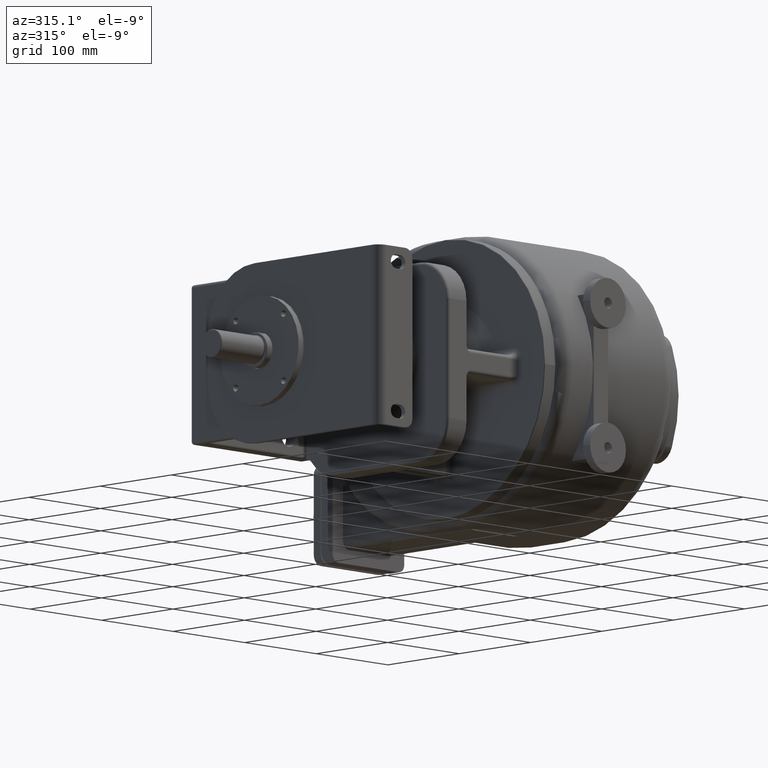
[diagram: clean part render]
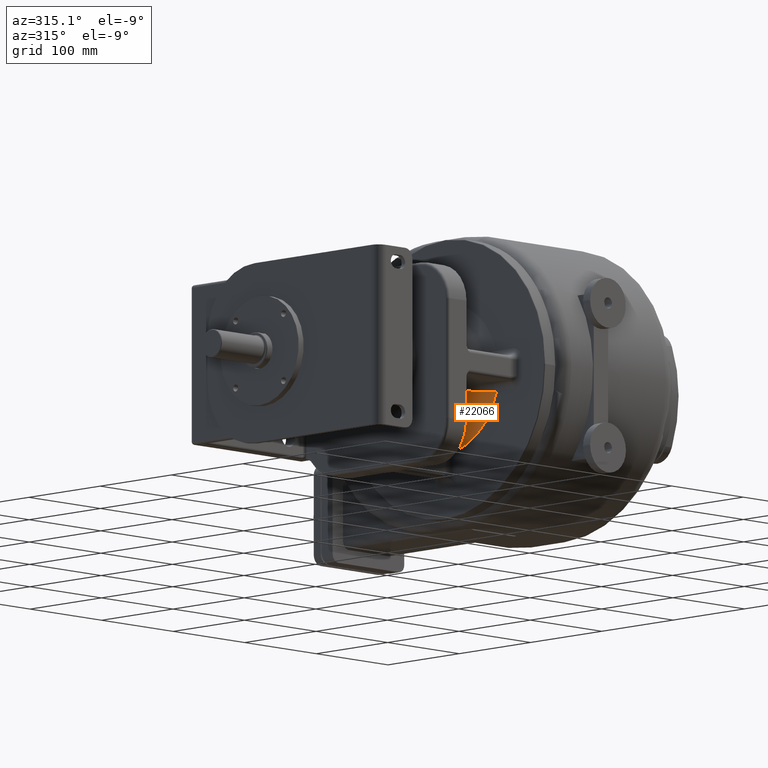
[diagram: same view with one face highlighted and labeled with its STEP entity id]
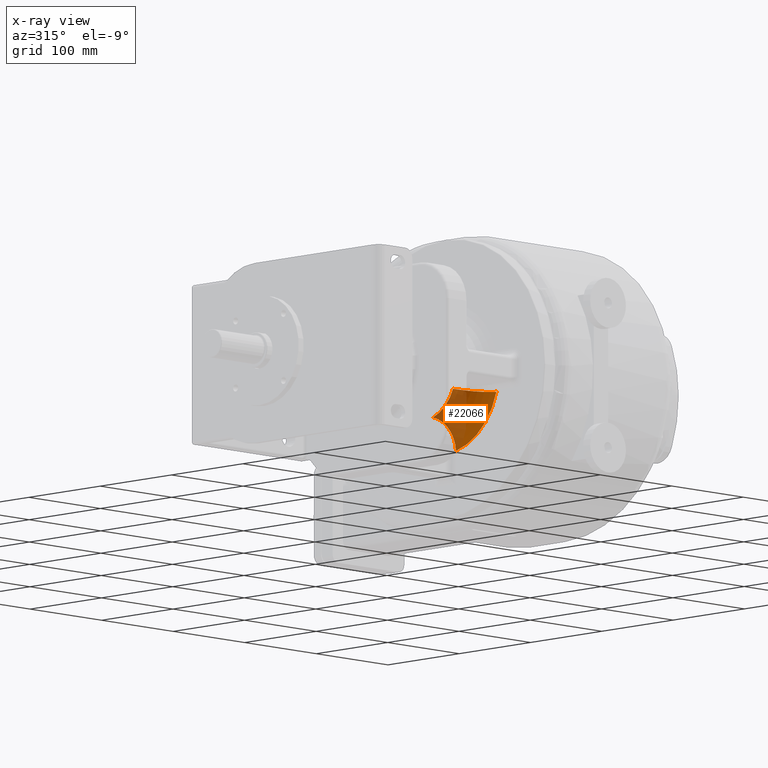
[diagram: x-ray of the same camera — body ghosted, the highlighted face saturated]
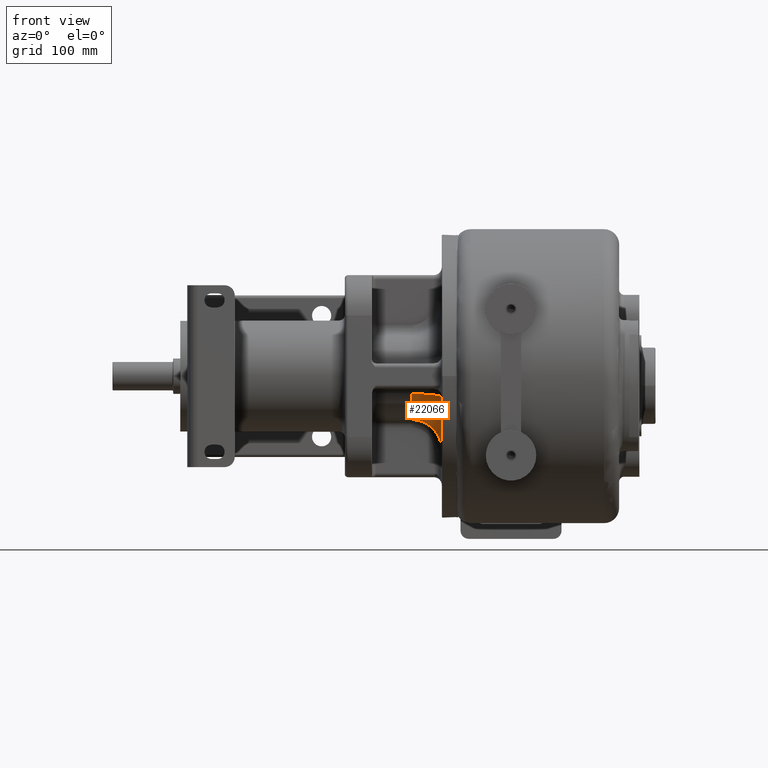
[diagram: same view with one face highlighted and labeled with its STEP entity id]
A machine part, auxiliary view. The second image highlights one B-rep face of the part: STEP entity #22066.
The next image is the same camera in x-ray: the body ghosted, the highlighted face saturated — about 50% of this face is hidden behind the body in this view.
A second angle (front view) of the same face is appended — the face is thin or edge-on in the first view.
In plain terms, the highlighted toroidal blend (fillet) surface has major radius 75 mm and minor (blend) radius 30 mm.
Its self-contained STEP definition (entity closure, byte-faithful):
#2137=CARTESIAN_POINT('',(-6.85E1,1.5E2,0.E0));
#2138=DIRECTION('',(1.E0,0.E0,0.E0));
#2139=DIRECTION('',(0.E0,-9.619193774443E-1,-2.733333336737E-1));
#2140=AXIS2_PLACEMENT_3D('',#2137,#2138,#2139);
#7496=CARTESIAN_POINT('',(-9.85E1,1.085024938911E2,-1.740566051092E1));
#7497=CARTESIAN_POINT('',(-9.821006049454E1,1.085024914255E2,
-1.740565979814E1));
#7498=CARTESIAN_POINT('',(-9.763010251261E1,1.084938888207E2,
-1.740687697590E1));
#7499=CARTESIAN_POINT('',(-9.676067386312E1,1.084551681341E2,
-1.741239510490E1));
#7500=CARTESIAN_POINT('',(-9.589244533032E1,1.083906493269E2,
-1.742159448737E1));
#7501=CARTESIAN_POINT('',(-9.502613385867E1,1.083003482345E2,
-1.743442595108E1));
#7502=CARTESIAN_POINT('',(-9.416237386399E1,1.081843034498E2,
-1.745085973516E1));
#7503=CARTESIAN_POINT('',(-9.330179651787E1,1.080425686785E2,
-1.747087490467E1));
#7504=CARTESIAN_POINT('',(-9.244503812743E1,1.078751980683E2,
-1.749441669553E1));
#7505=CARTESIAN_POINT('',(-9.159275760049E1,1.076822534919E2,
-1.752140303231E1));
#7506=CARTESIAN_POINT('',(-9.074565554434E1,1.074638424898E2,
-1.755179245176E1));
#7507=CARTESIAN_POINT('',(-8.990443685235E1,1.072200865197E2,
-1.758552044772E1));
#7508=CARTESIAN_POINT('',(-8.906980719107E1,1.069511070586E2,
-1.762246486644E1));
#7509=CARTESIAN_POINT('',(-8.824240888420E1,1.066570426454E2,
-1.766254912423E1));
#7510=CARTESIAN_POINT('',(-8.742290108863E1,1.063380524633E2,
-1.770569588579E1));
#7511=CARTESIAN_POINT('',(-8.661194830159E1,1.059942999421E2,
-1.775179063928E1));
#7512=CARTESIAN_POINT('',(-8.581023939814E1,1.056259727975E2,
-1.780070479572E1));
#7513=CARTESIAN_POINT('',(-8.501847612237E1,1.052333020636E2,
-1.785234589395E1));
#7514=CARTESIAN_POINT('',(-8.423736778191E1,1.048165385745E2,
-1.790659991540E1));
#7515=CARTESIAN_POINT('',(-8.346761667741E1,1.043759378573E2,
-1.796330890587E1));
#7516=CARTESIAN_POINT('',(-8.270991161182E1,1.039117906618E2,
-1.802236081892E1));
#7517=CARTESIAN_POINT('',(-8.196494838648E1,1.034244146436E2,
-1.808363729230E1));
#7518=CARTESIAN_POINT('',(-8.123342512749E1,1.029141417728E2,
-1.814698166732E1));
#7519=CARTESIAN_POINT('',(-8.051603534592E1,1.023813374354E2,
-1.821225673318E1));
#7520=CARTESIAN_POINT('',(-7.981347054732E1,1.018263995397E2,
-1.827933542786E1));
#7521=CARTESIAN_POINT('',(-7.912642085403E1,1.012497512465E2,
-1.834807504501E1));
#7522=CARTESIAN_POINT('',(-7.845556433834E1,1.006518343129E2,
-1.841831931075E1));
#7523=CARTESIAN_POINT('',(-7.780156854379E1,1.000331255574E2,
-1.848993869315E1));
#7524=CARTESIAN_POINT('',(-7.716509447344E1,9.939413008793E1,
-1.856279941296E1));
#7525=CARTESIAN_POINT('',(-7.654679261805E1,9.873537296516E1,
-1.863674553561E1));
#7526=CARTESIAN_POINT('',(-7.594729622377E1,9.805740983734E1,
-1.871164567338E1));
#7527=CARTESIAN_POINT('',(-7.536722614095E1,9.736082528094E1,
-1.878737293657E1));
#7528=CARTESIAN_POINT('',(-7.480719013822E1,9.664622668558E1,
-1.886378379757E1));
#7529=CARTESIAN_POINT('',(-7.426777575613E1,9.591424687784E1,
-1.894074708367E1));
#7530=CARTESIAN_POINT('',(-7.374955190097E1,9.516554626232E1,
-1.901814380133E1));
#7531=CARTESIAN_POINT('',(-7.325306952304E1,9.440080960687E1,
-1.909585017118E1));
#7532=CARTESIAN_POINT('',(-7.277885333706E1,9.362073393797E1,
-1.917373687095E1));
#7533=CARTESIAN_POINT('',(-7.232740382945E1,9.282604062148E1,
-1.925169819574E1));
#7534=CARTESIAN_POINT('',(-7.189919925373E1,9.201747164511E1,
-1.932963049532E1));
#7535=CARTESIAN_POINT('',(-7.149469737625E1,9.119578873866E1,
-1.940741140554E1));
#7536=CARTESIAN_POINT('',(-7.111432877511E1,9.036177804381E1,
-1.948494700414E1));
#7537=CARTESIAN_POINT('',(-7.075849788808E1,8.951624547478E1,
-1.956215092764E1));
#7538=CARTESIAN_POINT('',(-7.042757995622E1,8.866000290635E1,
-1.963891796110E1));
#7539=CARTESIAN_POINT('',(-7.012191203766E1,8.779385278760E1,
-1.971516428920E1));
#7540=CARTESIAN_POINT('',(-6.984180617933E1,8.691861574588E1,
-1.979082143161E1));
#7541=CARTESIAN_POINT('',(-6.958754764891E1,8.603511869236E1,
-1.986581193981E1));
#7542=CARTESIAN_POINT('',(-6.935940289199E1,8.514423033293E1,
-1.994004656420E1));
#7543=CARTESIAN_POINT('',(-6.915760498981E1,8.424683392141E1,
-2.001347261182E1));
#7544=CARTESIAN_POINT('',(-6.898235632237E1,8.334382689024E1,
-2.008603558262E1));
#7545=CARTESIAN_POINT('',(-6.883382022543E1,8.243606900187E1,
-2.015765911240E1));
#7546=CARTESIAN_POINT('',(-6.871212709296E1,8.152440165250E1,
-2.022830169244E1));
#7547=CARTESIAN_POINT('',(-6.861738147654E1,8.060967110023E1,
-2.029793283911E1));
#7548=CARTESIAN_POINT('',(-6.854966376890E1,7.969273493679E1,
-2.036647988522E1));
#7549=CARTESIAN_POINT('',(-6.850902579198E1,7.877451255475E1,
-2.043390237881E1));
#7550=CARTESIAN_POINT('',(-6.850000146728E1,7.816215261247E1,
-2.047809767058E1));
#7551=CARTESIAN_POINT('',(-6.850000023879E1,7.785604670870E1,-2.05E1));
#7553=CARTESIAN_POINT('',(-6.850000025213E1,1.345E2,-7.338085579471E1));
#7554=CARTESIAN_POINT('',(-6.850000155911E1,1.345164607217E2,
-7.307912136305E1));
#7555=CARTESIAN_POINT('',(-6.850891719310E1,1.345496716044E2,
-7.247556867752E1));
#7556=CARTESIAN_POINT('',(-6.854905568657E1,1.346003226884E2,
-7.157074872480E1));
#7557=CARTESIAN_POINT('',(-6.861592897252E1,1.346518100262E2,
-7.066735087691E1));
#7558=CARTESIAN_POINT('',(-6.870948034833E1,1.347041040222E2,
-6.976625177088E1));
#7559=CARTESIAN_POINT('',(-6.882962757366E1,1.347571475172E2,
-6.886826672237E1));
#7560=CARTESIAN_POINT('',(-6.897626670545E1,1.348109221893E2,
-6.797420000919E1));
#7561=CARTESIAN_POINT('',(-6.914927065341E1,1.348654011190E2,
-6.708485096111E1));
#7562=CARTESIAN_POINT('',(-6.934848284671E1,1.349205222206E2,
-6.620103574203E1));
#7563=CARTESIAN_POINT('',(-6.957371161071E1,1.349762492951E2,
-6.532360340813E1));
#7564=CARTESIAN_POINT('',(-6.982473756950E1,1.350325497509E2,
-6.445339042691E1));
#7565=CARTESIAN_POINT('',(-7.010131160098E1,1.350893532048E2,
-6.359122001123E1));
#7566=CARTESIAN_POINT('',(-7.040316950190E1,1.351466033887E2,
-6.273787287571E1));
#7567=CARTESIAN_POINT('',(-7.073002321175E1,1.352042562382E2,
-6.189412522576E1));
#7568=CARTESIAN_POINT('',(-7.108156253231E1,1.352622518768E2,
-6.106073763264E1));
#7569=CARTESIAN_POINT('',(-7.145744324852E1,1.353205068316E2,
-6.023847945295E1));
#7570=CARTESIAN_POINT('',(-7.185729488027E1,1.353789642324E2,
-5.942811625958E1));
#7571=CARTESIAN_POINT('',(-7.228072315982E1,1.354375617E2,-5.863039779158E1));
#7572=CARTESIAN_POINT('',(-7.272730963425E1,1.354961997641E2,
-5.784605100792E1));
#7573=CARTESIAN_POINT('',(-7.319661795802E1,1.355548065373E2,
-5.707578600126E1));
#7574=CARTESIAN_POINT('',(-7.368819104990E1,1.356133123686E2,
-5.632029736208E1));
#7575=CARTESIAN_POINT('',(-7.420154922910E1,1.356716156300E2,
-5.558025848689E1));
#7576=CARTESIAN_POINT('',(-7.473618863788E1,1.357296234942E2,
-5.485633316879E1));
#7577=CARTESIAN_POINT('',(-7.529158787207E1,1.357872545157E2,
-5.414916679801E1));
#7578=CARTESIAN_POINT('',(-7.586720709360E1,1.358444135745E2,
-5.345938232215E1));
#7579=CARTESIAN_POINT('',(-7.646248739640E1,1.359009845896E2,
-5.278757905810E1));
#7580=CARTESIAN_POINT('',(-7.707685622117E1,1.359568783897E2,
-5.213433957910E1));
#7581=CARTESIAN_POINT('',(-7.770972721264E1,1.360120028925E2,
-5.150022368108E1));
#7582=CARTESIAN_POINT('',(-7.836049609613E1,1.360662309275E2,
-5.088576411554E1));
#7583=CARTESIAN_POINT('',(-7.902854614367E1,1.361194632712E2,
-5.029147812441E1));
#7584=CARTESIAN_POINT('',(-7.971325077221E1,1.361716072272E2,
-4.971786059444E1));
#7585=CARTESIAN_POINT('',(-8.041397040858E1,1.362225396288E2,
-4.916537733782E1));
#7586=CARTESIAN_POINT('',(-8.113005019580E1,1.362721479280E2,
-4.863447794062E1));
#7587=CARTESIAN_POINT('',(-8.186082865981E1,1.363203368633E2,
-4.812559119029E1));
#7588=CARTESIAN_POINT('',(-8.260563737281E1,1.363670017641E2,
-4.763911912934E1));
#7589=CARTESIAN_POINT('',(-8.336380055597E1,1.364120155477E2,
-4.717543417620E1));
#7590=CARTESIAN_POINT('',(-8.413463811552E1,1.364552858933E2,
-4.673489421588E1));
#7591=CARTESIAN_POINT('',(-8.491746929250E1,1.364967250336E2,
-4.631783335018E1));
#7592=CARTESIAN_POINT('',(-8.571159802933E1,1.365362072897E2,
-4.592455801174E1));
#7593=CARTESIAN_POINT('',(-8.651631648929E1,1.365736403608E2,
-4.555536428227E1));
#7594=CARTESIAN_POINT('',(-8.733091576213E1,1.366089475531E2,
-4.521052768404E1));
#7595=CARTESIAN_POINT('',(-8.815469257460E1,1.366420270999E2,
-4.489028943546E1));
#7596=CARTESIAN_POINT('',(-8.898696171753E1,1.366727862942E2,
-4.459486437919E1));
#7597=CARTESIAN_POINT('',(-8.982703506658E1,1.367011583053E2,
-4.432445635692E1));
#7598=CARTESIAN_POINT('',(-9.067423205346E1,1.367270774741E2,
-4.407924852032E1));
#7599=CARTESIAN_POINT('',(-9.152781584182E1,1.367504499716E2,
-4.385941171259E1));
#7600=CARTESIAN_POINT('',(-9.238704532529E1,1.367712197868E2,
-4.366510390093E1));
#7601=CARTESIAN_POINT('',(-9.325117456130E1,1.367893458144E2,
-4.349646360189E1));
#7602=CARTESIAN_POINT('',(-9.411950120708E1,1.368047654654E2,
-4.335359096241E1));
#7603=CARTESIAN_POINT('',(-9.499134795657E1,1.368174344062E2,
-4.323657002321E1));
#7604=CARTESIAN_POINT('',(-9.586603639890E1,1.368273294799E2,
-4.314547546782E1));
#7605=CARTESIAN_POINT('',(-9.674288143636E1,1.368344236388E2,
-4.308036672563E1));
#7606=CARTESIAN_POINT('',(-9.762112507590E1,1.368386819051E2,
-4.304128386526E1));
#7607=CARTESIAN_POINT('',(-9.820705357064E1,1.368396229728E2,
-4.303259996130E1));
#7608=CARTESIAN_POINT('',(-9.85E1,1.368396225521E2,-4.303259802691E1));
#7610=CARTESIAN_POINT('',(-9.85E1,1.5E2,0.E0));
#7611=DIRECTION('',(1.E0,0.E0,0.E0));
#7612=DIRECTION('',(0.E0,-9.221667953432E-1,-3.867924528302E-1));
#7613=AXIS2_PLACEMENT_3D('',#7610,#7611,#7612);
#9495=VERTEX_POINT('',#7496);
#9496=VERTEX_POINT('',#7551);
#9523=CARTESIAN_POINT('',(-9.85E1,1.368396226415E2,-4.303259773453E1));
#9524=VERTEX_POINT('',#9523);
#9525=CARTESIAN_POINT('',(-6.85E1,1.344999999844E2,-7.338085581073E1));
#9526=VERTEX_POINT('',#9525);
#22053=CARTESIAN_POINT('',(-9.85E1,1.5E2,0.E0));
#22054=DIRECTION('',(-1.E0,0.E0,0.E0));
#22055=DIRECTION('',(0.E0,1.E0,0.E0));
#22056=AXIS2_PLACEMENT_3D('',#22053,#22054,#22055);
#22057=TOROIDAL_SURFACE('',#22056,7.5E1,3.E1);
#22058=ORIENTED_EDGE('',*,*,#22044,.T.);
#22059=ORIENTED_EDGE('',*,*,#14458,.T.);
#22061=ORIENTED_EDGE('',*,*,#22060,.T.);
#22063=ORIENTED_EDGE('',*,*,#22062,.F.);
#22064=EDGE_LOOP('',(#22058,#22059,#22061,#22063));
#22065=FACE_OUTER_BOUND('',#22064,.F.);
#22066=ADVANCED_FACE('',(#22065),#22057,.F.);
#2141=CIRCLE('',#2140,7.5E1);
#7552=B_SPLINE_CURVE_WITH_KNOTS('',3,(#7496,#7497,#7498,#7499,#7500,#7501,#7502,
#7503,#7504,#7505,#7506,#7507,#7508,#7509,#7510,#7511,#7512,#7513,#7514,#7515,
#7516,#7517,#7518,#7519,#7520,#7521,#7522,#7523,#7524,#7525,#7526,#7527,#7528,
#7529,#7530,#7531,#7532,#7533,#7534,#7535,#7536,#7537,#7538,#7539,#7540,#7541,
#7542,#7543,#7544,#7545,#7546,#7547,#7548,#7549,#7550,#7551),.UNSPECIFIED.,.F.,
.F.,(4,1,1,1,1,1,1,1,1,1,1,1,1,1,1,1,1,1,1,1,1,1,1,1,1,1,1,1,1,1,1,1,1,1,1,1,1,
1,1,1,1,1,1,1,1,1,1,1,1,1,1,1,1,4),(0.E0,1.886792452830E-2,3.773584905660E-2,
5.660377358491E-2,7.547169811321E-2,9.433962264151E-2,1.132075471698E-1,
1.320754716981E-1,1.509433962264E-1,1.698113207547E-1,1.886792452830E-1,
2.075471698113E-1,2.264150943396E-1,2.452830188679E-1,2.641509433962E-1,
2.830188679245E-1,3.018867924528E-1,3.207547169811E-1,3.396226415094E-1,
3.584905660377E-1,3.773584905660E-1,3.962264150943E-1,4.150943396226E-1,
4.339622641509E-1,4.528301886792E-1,4.716981132075E-1,4.905660377358E-1,
5.094339622642E-1,5.283018867925E-1,5.471698113208E-1,5.660377358491E-1,
5.849056603774E-1,6.037735849057E-1,6.226415094340E-1,6.415094339623E-1,
6.603773584906E-1,6.792452830189E-1,6.981132075472E-1,7.169811320755E-1,
7.358490566038E-1,7.547169811321E-1,7.735849056604E-1,7.924528301887E-1,
8.113207547170E-1,8.301886792453E-1,8.490566037736E-1,8.679245283019E-1,
8.867924528302E-1,9.056603773585E-1,9.245283018868E-1,9.433962264151E-1,
9.622641509434E-1,9.811320754717E-1,1.E0),.UNSPECIFIED.);
#7609=B_SPLINE_CURVE_WITH_KNOTS('',3,(#7553,#7554,#7555,#7556,#7557,#7558,#7559,
#7560,#7561,#7562,#7563,#7564,#7565,#7566,#7567,#7568,#7569,#7570,#7571,#7572,
#7573,#7574,#7575,#7576,#7577,#7578,#7579,#7580,#7581,#7582,#7583,#7584,#7585,
#7586,#7587,#7588,#7589,#7590,#7591,#7592,#7593,#7594,#7595,#7596,#7597,#7598,
#7599,#7600,#7601,#7602,#7603,#7604,#7605,#7606,#7607,#7608),.UNSPECIFIED.,.F.,
.F.,(4,1,1,1,1,1,1,1,1,1,1,1,1,1,1,1,1,1,1,1,1,1,1,1,1,1,1,1,1,1,1,1,1,1,1,1,1,
1,1,1,1,1,1,1,1,1,1,1,1,1,1,1,1,4),(0.E0,1.886792452830E-2,3.773584905660E-2,
5.660377358491E-2,7.547169811321E-2,9.433962264151E-2,1.132075471698E-1,
1.320754716981E-1,1.509433962264E-1,1.698113207547E-1,1.886792452830E-1,
2.075471698113E-1,2.264150943396E-1,2.452830188679E-1,2.641509433962E-1,
2.830188679245E-1,3.018867924528E-1,3.207547169811E-1,3.396226415094E-1,
3.584905660377E-1,3.773584905660E-1,3.962264150943E-1,4.150943396226E-1,
4.339622641509E-1,4.528301886792E-1,4.716981132075E-1,4.905660377358E-1,
5.094339622642E-1,5.283018867925E-1,5.471698113208E-1,5.660377358491E-1,
5.849056603774E-1,6.037735849057E-1,6.226415094340E-1,6.415094339623E-1,
6.603773584906E-1,6.792452830189E-1,6.981132075472E-1,7.169811320755E-1,
7.358490566038E-1,7.547169811321E-1,7.735849056604E-1,7.924528301887E-1,
8.113207547170E-1,8.301886792453E-1,8.490566037736E-1,8.679245283019E-1,
8.867924528302E-1,9.056603773585E-1,9.245283018868E-1,9.433962264151E-1,
9.622641509434E-1,9.811320754717E-1,1.E0),.UNSPECIFIED.);
#7614=CIRCLE('',#7613,4.5E1);
#14458=EDGE_CURVE('',#9496,#9526,#2141,.T.);
#22044=EDGE_CURVE('',#9495,#9496,#7552,.T.);
#22060=EDGE_CURVE('',#9526,#9524,#7609,.T.);
#22062=EDGE_CURVE('',#9495,#9524,#7614,.T.);